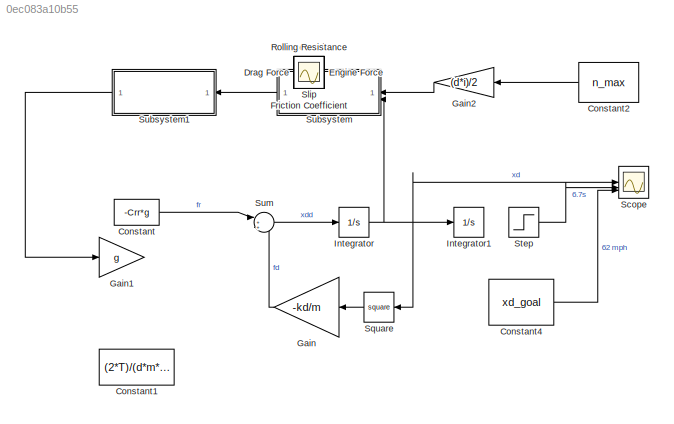
MODEL slx_0ec083a10b55
KIND model
CONFIG AbsTol = auto
CONFIG EnableMultiTasking = off
CONFIG FixedStep = auto
CONFIG MaxStep = auto
CONFIG MinStep = auto
CONFIG RelTol = 1e-3
CONFIG SampleTimeConstraint = Unconstrained
CONFIG SolverName = VariableStepAuto
CONFIG StartTime = 0.0
CONFIG StopTime = 10.0
BLOCK [Scope] Acceleration
  Floating = off
  IOType = viewer
  NumInputPorts = 1
  ScopeSpecificationString = Simulink.scopes.TimeScopeBlockCfg('CurrentConfiguration', extmgr.ConfigurationSet(extmgr.Configuration('Core','General UI',true),extmgr.Configuration('Core','Source UI',true),extmgr.Configuration('Sources','WiredSimulink',true,'DataLoggingVariableName','ScopeData5'),extmgr.Configuration('Visuals','Time Domain',true,'SerializedDisplays',{struct('MinYLimReal','-2310.61886','MaxYLimReal','268.06415',...<+1424ch>
BLOCK [Constant] Constant
  Value = -Crr*g
BLOCK [Constant] Constant1
  Value = (2*T)/(d*m*i)
BLOCK [Constant] Constant2
  Value = n_max
BLOCK [Constant] Constant4
  Value = xd_goal
BLOCK [Scope] Drag Force
  Floating = off
  IOType = viewer
  NumInputPorts = 1
  ScopeSpecificationString = Simulink.scopes.TimeScopeBlockCfg('CurrentConfiguration', extmgr.ConfigurationSet(extmgr.Configuration('Core','General UI',true),extmgr.Configuration('Core','Source UI',true),extmgr.Configuration('Sources','WiredSimulink',true,'DataLoggingVariableName','ScopeData4'),extmgr.Configuration('Visuals','Time Domain',true,'SerializedDisplays',{struct('MinYLimReal','-10.71488','MaxYLimReal','1.19054','YLa...<+1365ch>
BLOCK [Scope] Engine Force
  Floating = off
  IOType = viewer
  NumInputPorts = 1
  ScopeSpecificationString = Simulink.scopes.TimeScopeBlockCfg('CurrentConfiguration', extmgr.ConfigurationSet(extmgr.Configuration('Core','General UI',true),extmgr.Configuration('Core','Source UI',true),extmgr.Configuration('Sources','WiredSimulink',true,'DataLoggingVariableName','ScopeData3'),extmgr.Configuration('Visuals','Time Domain',true,'SerializedDisplays',{struct('MinYLimReal','-2310.32721','MaxYLimReal','265.43932',...<+1381ch>
BLOCK [Scope] Friction Coefficient
  Floating = off
  IOType = viewer
  NumInputPorts = 1
  ScopeSpecificationString = Simulink.scopes.TimeScopeBlockCfg('CurrentConfiguration', extmgr.ConfigurationSet(extmgr.Configuration('Core','General UI',true),extmgr.Configuration('Core','Source UI',true),extmgr.Configuration('Sources','WiredSimulink',true,'DataLoggingVariableName','ScopeData1'),extmgr.Configuration('Visuals','Time Domain',true,'SerializedDisplays',{struct('MinYLimReal','-235.50736','MaxYLimReal','27.05804','Y...<+1412ch>
BLOCK [Gain] Gain
  Gain = -kd/m
BLOCK [Gain] Gain1
  Gain = g
BLOCK [Gain] Gain2
  Gain = (d*i)/2
BLOCK [Integrator] Integrator
  InitialCondition = xd0
BLOCK [Integrator] Integrator1
BLOCK [Scope] Rolling Resistance
  Floating = off
  IOType = viewer
  NumInputPorts = 1
  ScopeSpecificationString = Simulink.scopes.TimeScopeBlockCfg('CurrentConfiguration', extmgr.ConfigurationSet(extmgr.Configuration('Core','General UI',true),extmgr.Configuration('Core','Source UI',true),extmgr.Configuration('Sources','WiredSimulink',true,'DataLoggingVariableName','ScopeData2'),extmgr.Configuration('Visuals','Time Domain',true,'SerializedDisplays',{struct('MinYLimReal','-0.07376','MaxYLimReal','-0.05377','YLa...<+1398ch>
BLOCK [Scope] Scope
  Floating = off
  NumInputPorts = 3
  ScopeSpecificationString = Simulink.scopes.TimeScopeBlockCfg('CurrentConfiguration', extmgr.ConfigurationSet(extmgr.Configuration('Core','General UI',true),extmgr.Configuration('Core','Source UI',true),extmgr.Configuration('Sources','WiredSimulink',true),extmgr.Configuration('Visuals','Time Domain',true,'SerializedDisplays',{struct('MinYLimReal','-6.049','MaxYLimReal','54.44096','YLabelReal','','MinYLimMag','0.00000','MaxYL...<+1368ch>
BLOCK [Scope] Slip
  Floating = off
  IOType = viewer
  NumInputPorts = 1
  ScopeSpecificationString = Simulink.scopes.TimeScopeBlockCfg('CurrentConfiguration', extmgr.ConfigurationSet(extmgr.Configuration('Core','General UI',true),extmgr.Configuration('Core','Source UI',true),extmgr.Configuration('Sources','WiredSimulink',true,'DataLoggingVariableName','ScopeData6'),extmgr.Configuration('Visuals','Time Domain',true,'SerializedDisplays',{struct('MinYLimReal','-0.31202','MaxYLimReal','1.14578','YLab...<+1368ch>
BLOCK [Math] Square
  Operator = square
BLOCK [Step] Step
  After = xd_goal
  SampleTime = 0
  Time = t_goal
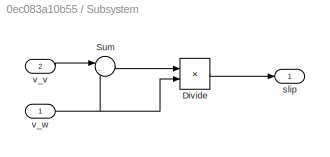
BLOCK [SubSystem] Subsystem
BLOCK [Product] Subsystem/Divide
  Inputs = */
BLOCK [Sum] Subsystem/Sum
  Inputs = |-+
BLOCK [Outport] Subsystem/slip
BLOCK [Inport] Subsystem/v_v
  Port = 2
BLOCK [Inport] Subsystem/v_w
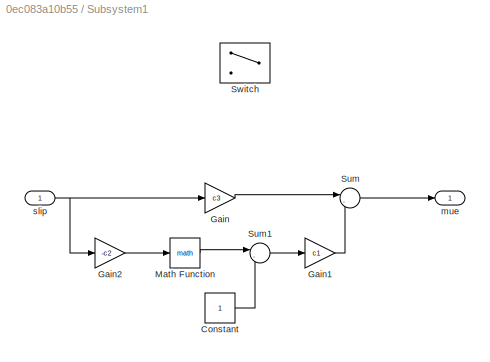
BLOCK [SubSystem] Subsystem1
BLOCK [Constant] Subsystem1/Constant
BLOCK [Gain] Subsystem1/Gain
  Gain = c3
BLOCK [Gain] Subsystem1/Gain1
  Gain = c1
BLOCK [Gain] Subsystem1/Gain2
  Gain = -c2
BLOCK [Math] Subsystem1/Math Function
BLOCK [Sum] Subsystem1/Sum
  Inputs = |-+
BLOCK [Sum] Subsystem1/Sum1
  Inputs = |-+
BLOCK [Switch] Subsystem1/Switch
  Criteria = u2 > Threshold
  InputSameDT = off
  SaturateOnIntegerOverflow = off
BLOCK [Outport] Subsystem1/mue
BLOCK [Inport] Subsystem1/slip
BLOCK [Sum] Sum
  Inputs = |+++
LINE Constant2:1 -> Gain2:1
LINE Constant4:1 -> Scope:3
LINE Constant:1 -> Sum:1
LINE Gain2:1 -> Subsystem:1
LINE Gain:1 -> Sum:3
NET Integrator:1 -> Integrator1:1, Scope:1, Square:1, Subsystem:2
LINE Square:1 -> Gain:1
LINE Step:1 -> Scope:2
LINE Subsystem/Divide:1 -> Subsystem/slip:1
LINE Subsystem/Sum:1 -> Subsystem/Divide:1
LINE Subsystem/v_v:1 -> Subsystem/Sum:1
NET Subsystem/v_w:1 -> Subsystem/Divide:2, Subsystem/Sum:2
LINE Subsystem1/Constant:1 -> Subsystem1/Sum1:2
LINE Subsystem1/Gain1:1 -> Subsystem1/Sum:2
LINE Subsystem1/Gain2:1 -> Subsystem1/Math Function:1
LINE Subsystem1/Gain:1 -> Subsystem1/Sum:1
LINE Subsystem1/Math Function:1 -> Subsystem1/Sum1:1
LINE Subsystem1/Sum1:1 -> Subsystem1/Gain1:1
LINE Subsystem1/Sum:1 -> Subsystem1/mue:1
NET Subsystem1/slip:1 -> Subsystem1/Gain2:1, Subsystem1/Gain:1
LINE Subsystem1:1 -> Gain1:1
LINE Subsystem:1 -> Subsystem1:1
LINE Sum:1 -> Integrator:1
note: NET lines group one-source signal fan-out (src -> all destinations, sorted); 1:1 wires keep LINE
